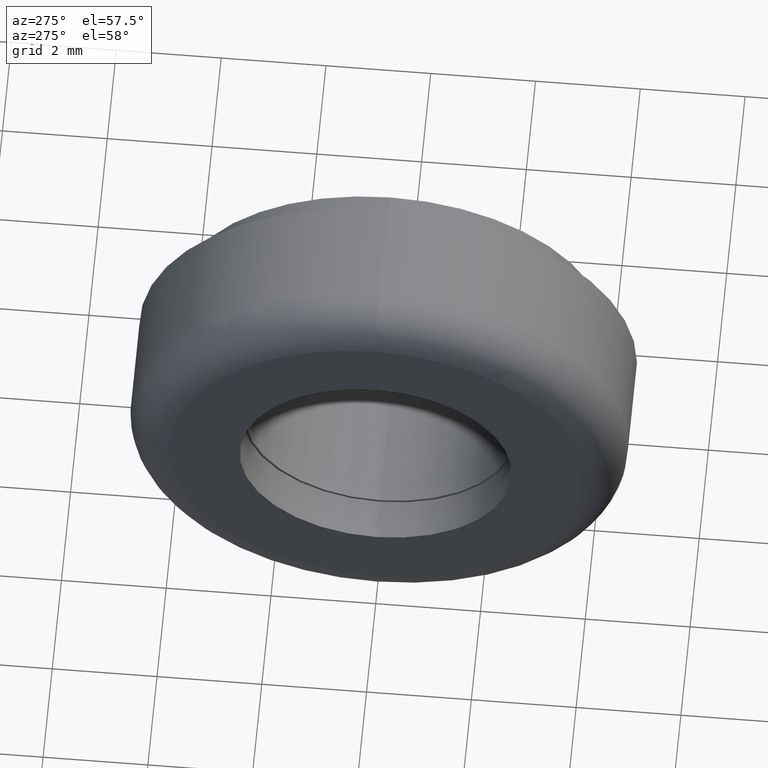
[diagram: clean part render]
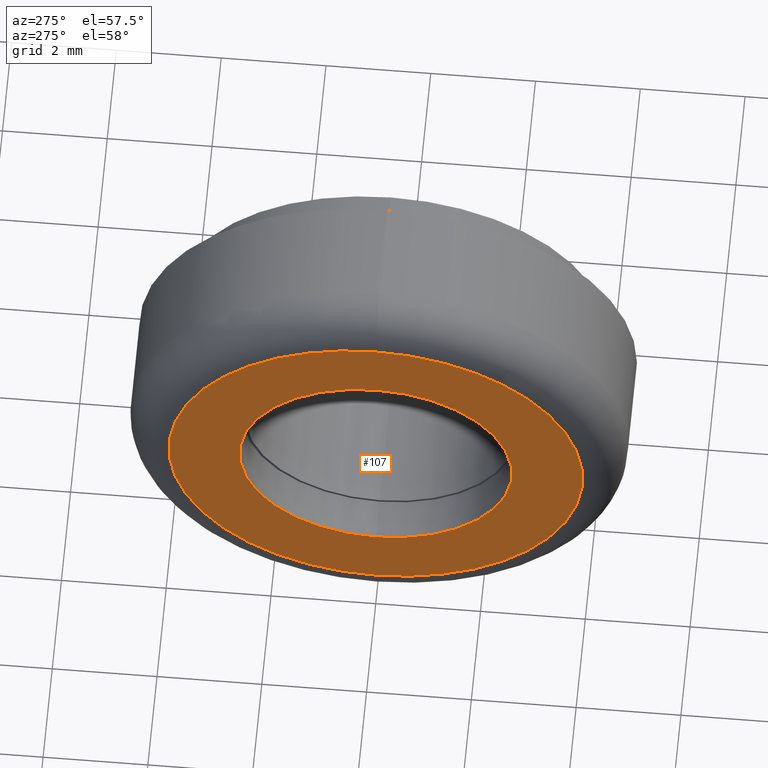
[diagram: same view with one face highlighted and labeled with its STEP entity id]
A machine part, auxiliary view. The second image highlights one B-rep face of the part: STEP entity #107.
In plain terms, the highlighted planar face has unit normal (1, 0, 0).
Its self-contained STEP definition (entity closure, byte-faithful):
#40 = CARTESIAN_POINT ( 'NONE',  ( 0.0000000000000000000, 0.0000000000000000000, 0.0000000000000000000 ) ) ;
#81 = AXIS2_PLACEMENT_3D ( 'NONE', #526, #207, #587 ) ;
#101 = CIRCLE ( 'NONE', #389, 2.600000000000000100 ) ;
#107 = ADVANCED_FACE ( 'NONE', ( #632, #214 ), #224, .F. ) ;
#130 = DIRECTION ( 'NONE',  ( 0.0000000000000000000, 0.0000000000000000000, -1.000000000000000000 ) ) ;
#135 = AXIS2_PLACEMENT_3D ( 'NONE', #148, #529, #210 ) ;
#148 = CARTESIAN_POINT ( 'NONE',  ( 0.0000000000000000000, 0.0000000000000000000, 0.0000000000000000000 ) ) ;
#185 = CARTESIAN_POINT ( 'NONE',  ( 0.0000000000000000000, 5.327213576290986200E-016, 3.949999999999999700 ) ) ;
#188 = ORIENTED_EDGE ( 'NONE', *, *, #266, .T. ) ;
#195 = CARTESIAN_POINT ( 'NONE',  ( 0.0000000000000000000, 0.0000000000000000000, -3.949999999999999700 ) ) ;
#203 = AXIS2_PLACEMENT_3D ( 'NONE', #259, #646, #308 ) ;
#207 = DIRECTION ( 'NONE',  ( -1.000000000000000000, -0.0000000000000000000, -0.0000000000000000000 ) ) ;
#210 = DIRECTION ( 'NONE',  ( 0.0000000000000000000, 0.0000000000000000000, -1.000000000000000000 ) ) ;
#214 = FACE_OUTER_BOUND ( 'NONE', #498, .T. ) ;
#224 = PLANE ( 'NONE',  #511 ) ;
#254 = CARTESIAN_POINT ( 'NONE',  ( 0.0000000000000000000, 0.0000000000000000000, 0.0000000000000000000 ) ) ;
#259 = CARTESIAN_POINT ( 'NONE',  ( 0.0000000000000000000, 0.0000000000000000000, 0.0000000000000000000 ) ) ;
#266 = EDGE_CURVE ( 'NONE', #662, #560, #554, .T. ) ;
#282 = VERTEX_POINT ( 'NONE', #185 ) ;
#296 = CIRCLE ( 'NONE', #203, 3.949999999999999700 ) ;
#308 = DIRECTION ( 'NONE',  ( 0.0000000000000000000, 0.0000000000000000000, -1.000000000000000000 ) ) ;
#314 = VERTEX_POINT ( 'NONE', #195 ) ;
#327 = ORIENTED_EDGE ( 'NONE', *, *, #349, .T. ) ;
#330 = DIRECTION ( 'NONE',  ( 1.000000000000000000, 0.0000000000000000000, 0.0000000000000000000 ) ) ;
#349 = EDGE_CURVE ( 'NONE', #560, #662, #101, .T. ) ;
#389 = AXIS2_PLACEMENT_3D ( 'NONE', #254, #699, #130 ) ;
#396 = EDGE_LOOP ( 'NONE', ( #188, #327 ) ) ;
#431 = CARTESIAN_POINT ( 'NONE',  ( 0.0000000000000000000, 0.0000000000000000000, 2.600000000000000100 ) ) ;
#498 = EDGE_LOOP ( 'NONE', ( #544, #621 ) ) ;
#503 = EDGE_CURVE ( 'NONE', #314, #282, #296, .T. ) ;
#511 = AXIS2_PLACEMENT_3D ( 'NONE', #40, #330, #665 ) ;
#526 = CARTESIAN_POINT ( 'NONE',  ( 0.0000000000000000000, 0.0000000000000000000, 0.0000000000000000000 ) ) ;
#529 = DIRECTION ( 'NONE',  ( 1.000000000000000000, 0.0000000000000000000, 0.0000000000000000000 ) ) ;
#544 = ORIENTED_EDGE ( 'NONE', *, *, #503, .T. ) ;
#545 = EDGE_CURVE ( 'NONE', #282, #314, #726, .T. ) ;
#554 = CIRCLE ( 'NONE', #135, 2.600000000000000100 ) ;
#560 = VERTEX_POINT ( 'NONE', #706 ) ;
#587 = DIRECTION ( 'NONE',  ( 0.0000000000000000000, 0.0000000000000000000, -1.000000000000000000 ) ) ;
#621 = ORIENTED_EDGE ( 'NONE', *, *, #545, .T. ) ;
#632 = FACE_BOUND ( 'NONE', #396, .T. ) ;
#646 = DIRECTION ( 'NONE',  ( -1.000000000000000000, -0.0000000000000000000, -0.0000000000000000000 ) ) ;
#662 = VERTEX_POINT ( 'NONE', #431 ) ;
#665 = DIRECTION ( 'NONE',  ( 0.0000000000000000000, 0.0000000000000000000, -1.000000000000000000 ) ) ;
#699 = DIRECTION ( 'NONE',  ( 1.000000000000000000, 0.0000000000000000000, 0.0000000000000000000 ) ) ;
#706 = CARTESIAN_POINT ( 'NONE',  ( 0.0000000000000000000, 3.184081677783117700E-016, -2.600000000000000100 ) ) ;
#726 = CIRCLE ( 'NONE', #81, 3.949999999999999700 ) ;